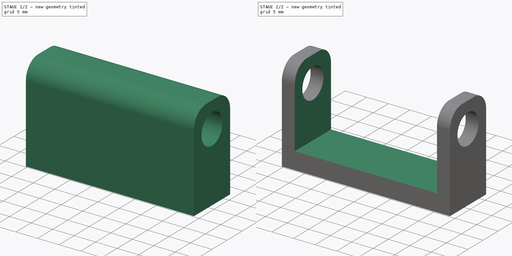
[diagram: build sequence overview — one tinted view per stage of 2, left to right]
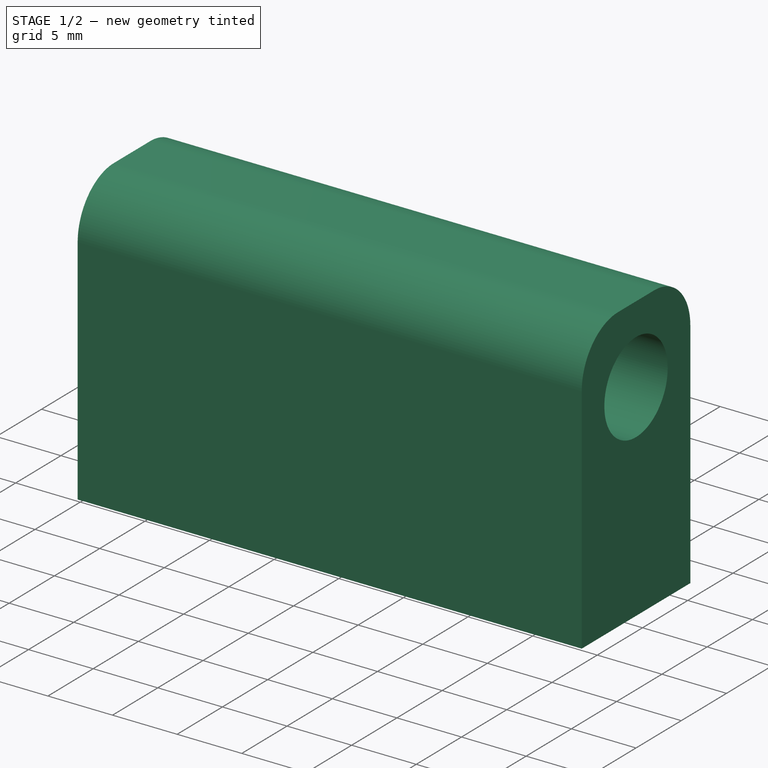
[diagram: stage 1 of 2 — iso view after this stage's code; geometry added in this stage tinted green]
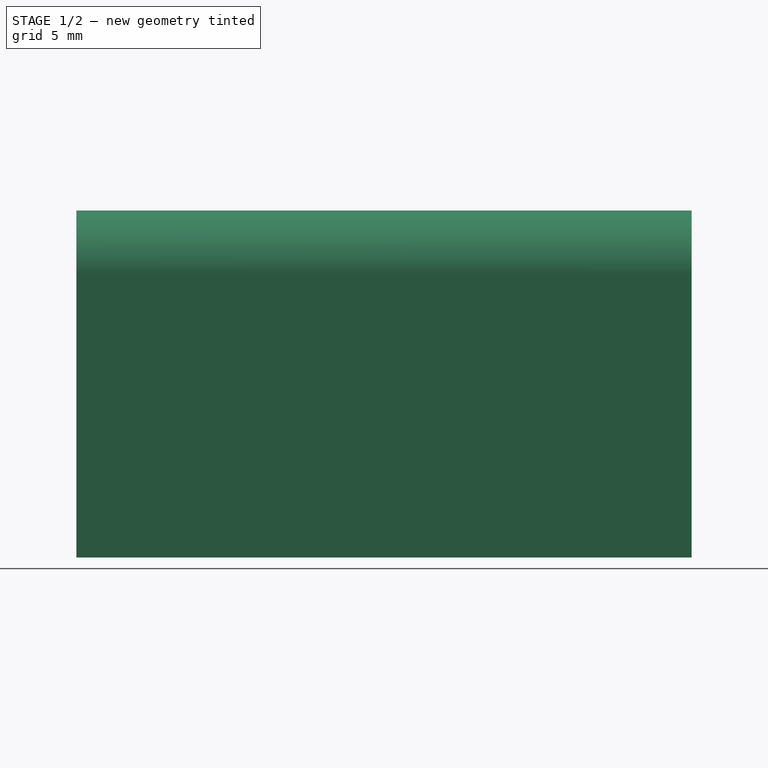
[diagram: stage 1 of 2 — front view after this stage's code; geometry added in this stage tinted green]
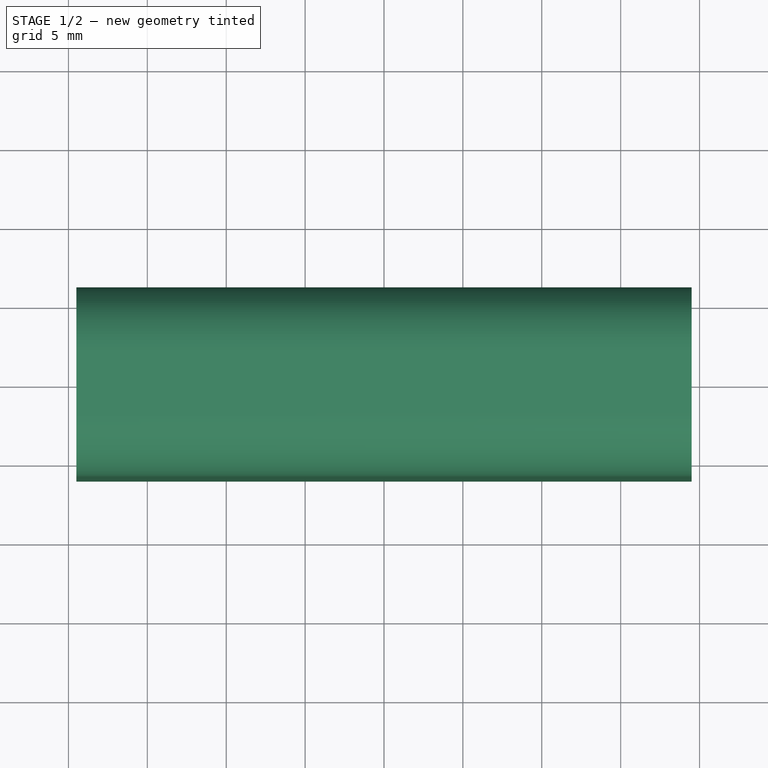
[diagram: stage 1 of 2 — top view after this stage's code; geometry added in this stage tinted green]
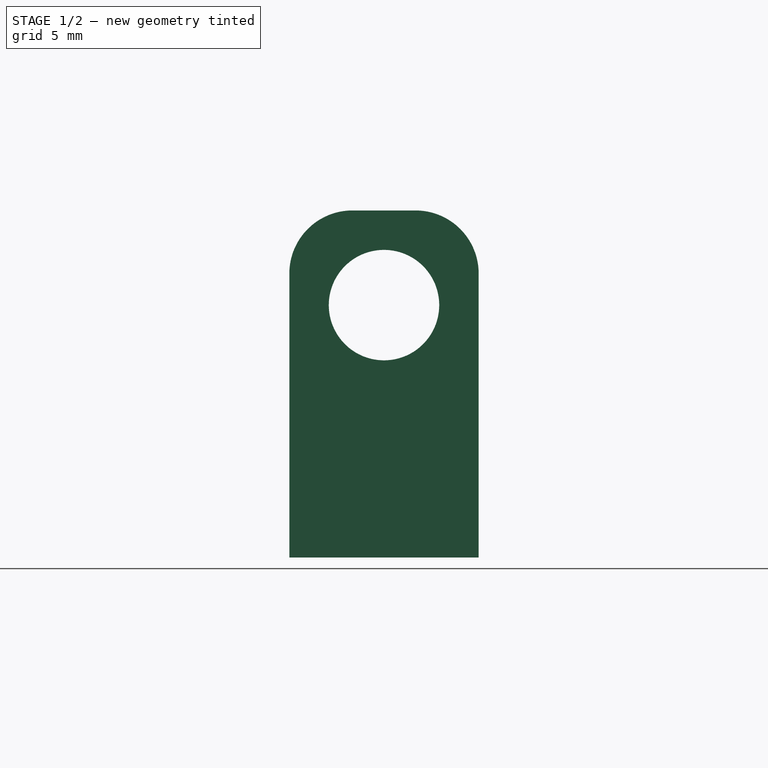
[diagram: stage 1 of 2 — right view after this stage's code; geometry added in this stage tinted green]
FCSTD DOCUMENT  (FreeCAD 0.21R33771 (Git))
Label: lamp_bracket
License: All rights reserved
LicenseURL: https://en.wikipedia.org/wiki/All_rights_reserved
objects: PartDesign::Plane×4, Sketcher::SketchObject×2, PartDesign::Pad×1, PartDesign::Pocket×1, PartDesign::Body×1
note: 11 computed .brp shape members not serialized (recipe doc carries the construction recipe); baked Part::Feature solids carry a one-line shape summary decoded from their .brp

FEATURE [PartDesign::Plane] DatumPlane
  AttachmentOffset = pos=(0,0,16.5) rot=(0,0,1;0rad)
  Length = 60
  MapMode = 5
  Placement = pos=(16.5,-3.7e-15,3.7e-15) rot=(0.57735,0.57735,0.57735;2.0944rad)
  ResizeMode = 0
  Support = -> [YZ_Plane]
  Width = 60
  expr: .AttachmentOffset.Base.z = 33 mm / 2
FEATURE [PartDesign::Plane] DatumPlane001
  AttachmentOffset = pos=(0,0,-16.5) rot=(0,0,1;0rad)
  Length = 60
  MapMode = 5
  Placement = pos=(-16.5,3.7e-15,-3.7e-15) rot=(0.57735,0.57735,0.57735;2.0944rad)
  ResizeMode = 0
  Support = -> [YZ_Plane]
  Width = 60
  expr: .AttachmentOffset.Base.z = -33 mm / 2
FEATURE [PartDesign::Plane] DatumPlane002
  AttachmentOffset = pos=(0,0,3) rot=(0,0,1;0rad)
  Length = 60
  MapMode = 5
  Placement = pos=(19.5,-4e-15,4e-15) rot=(0.57735,0.57735,0.57735;2.0944rad)
  ResizeMode = 0
  Support = -> [DatumPlane]
  Width = 60
FEATURE [Sketcher::SketchObject] Sketch
  FullyConstrained = true
  MapMode = 5
  Placement = pos=(19.5,-4e-15,4e-15) rot=(0.57735,0.57735,0.57735;2.0944rad)
  Support = -> [DatumPlane002]
  expr: .Constraints.dim1 = .Constraints.diam + 5 mm
  expr: Constraints[11] = .Constraints.dim1 / 2
  sketch-geometry (15):
    g0: LineSegment StartX=-6 StartY=22 StartZ=0 EndX=6 EndY=22 EndZ=0
    g1: LineSegment StartX=6 StartY=22 StartZ=0 EndX=6 EndY=4 EndZ=0
    g2: LineSegment StartX=6 StartY=4 StartZ=0 EndX=-6 EndY=4 EndZ=0
    g3: LineSegment StartX=-6 StartY=4 StartZ=0 EndX=-6 EndY=22 EndZ=0
    g4: Circle CenterX=0 CenterY=16 CenterZ=0 NormalX=0 NormalY=0 NormalZ=1 AngleXU=0 Radius=3.5
    g5: LineSegment StartX=-6 StartY=4 StartZ=0 EndX=6 EndY=4 EndZ=0
    g6: LineSegment StartX=6 StartY=4 StartZ=0 EndX=6 EndY=0 EndZ=0
    g7: LineSegment StartX=6 StartY=0 StartZ=0 EndX=-6 EndY=0 EndZ=0
    g8: LineSegment StartX=-6 StartY=0 StartZ=0 EndX=-6 EndY=4 EndZ=0
    g9: LineSegment StartX=-2 StartY=22 StartZ=0 EndX=2 EndY=22 EndZ=0
    g10: LineSegment StartX=-6 StartY=18 StartZ=0 EndX=-6 EndY=0 EndZ=0
    g11: LineSegment StartX=-6 StartY=0 StartZ=0 EndX=6 EndY=0 EndZ=0
    g12: LineSegment StartX=6 StartY=18 StartZ=0 EndX=6 EndY=0 EndZ=0
    g13: ArcOfCircle CenterX=-2 CenterY=18 CenterZ=0 NormalX=0 NormalY=0 NormalZ=1 AngleXU=0 Radius=4 StartAngle=1.5708 EndAngle=3.14159
    g14: ArcOfCircle CenterX=2 CenterY=18 CenterZ=0 NormalX=0 NormalY=0 NormalZ=1 AngleXU=0 Radius=4 StartAngle=0 EndAngle=1.5708
  constraints (42):
    c: Coincident(g0,g1)
    c: Coincident(g1,g2)
    c: Coincident(g2,g3)
    c: Coincident(g3,g0)
    c: Horizontal(g2)
    c: Vertical(g1)
    c: Vertical(g3)
    c: PointOnObject(g4,g-2)
    c: Symmetric(g0,g0,g-2)
    c: Diameter(g4) = 7  'diam'
    c: DistanceX(g0,g0) = 12  'dim1'
    c: DistanceY(g4,g0) = 6
    c: Coincident(g5,g6)
    c: Coincident(g6,g7)
    c: Coincident(g7,g8)
    c: Coincident(g8,g5)
    c: Horizontal(g7)
    c: Vertical(g6)
    c: Vertical(g8)
    c: Coincident(g5,g2)
    c: PointOnObject(g6,g-1)
    c: Coincident(g5,g1)
    c: DistanceY(g8,g8) = 4  'base_height'
    c: DistanceY(g1,g1) = 18  'lobe_height'
    c: PointOnObject(g9,g0)
    c: PointOnObject(g9,g0)
    c: PointOnObject(g10,g3)
    c: Coincident(g10,g7)
    c: Coincident(g11,g10)
    c: Coincident(g11,g6)
    c: PointOnObject(g12,g1)
    c: Coincident(g12,g11)
    c: Coincident(g13,g10)
    c: Coincident(g13,g9)
    c: Vertical(g13,g9)
    c: Horizontal(g13,g10)
    c: Coincident(g14,g9)
    c: Coincident(g14,g12)
    c: Vertical(g14,g9)
    c: Horizontal(g14,g12)
    c: Equal(g14,g13)
    c: Radius(g14) = 4
FEATURE [PartDesign::Plane] DatumPlane003
  AttachmentOffset = pos=(0,0,-3) rot=(0,0,1;0rad)
  Length = 60
  MapMode = 5
  Placement = pos=(-19.5,4e-15,-4e-15) rot=(0.57735,0.57735,0.57735;2.0944rad)
  ResizeMode = 0
  Support = -> [DatumPlane001]
  Width = 60
FEATURE [PartDesign::Pad] Pad
  Direction = (1,0,0)
  Length = 10
  Length2 = 10
  Placement = pos=(19.5,-4e-15,4e-15) rot=(0.57735,0.57735,0.57735;2.0944rad)
  Profile = -> Sketch
  ReferenceAxis = -> Sketch [N_Axis]
  Type = 3
  UpToFace = -> DatumPlane003
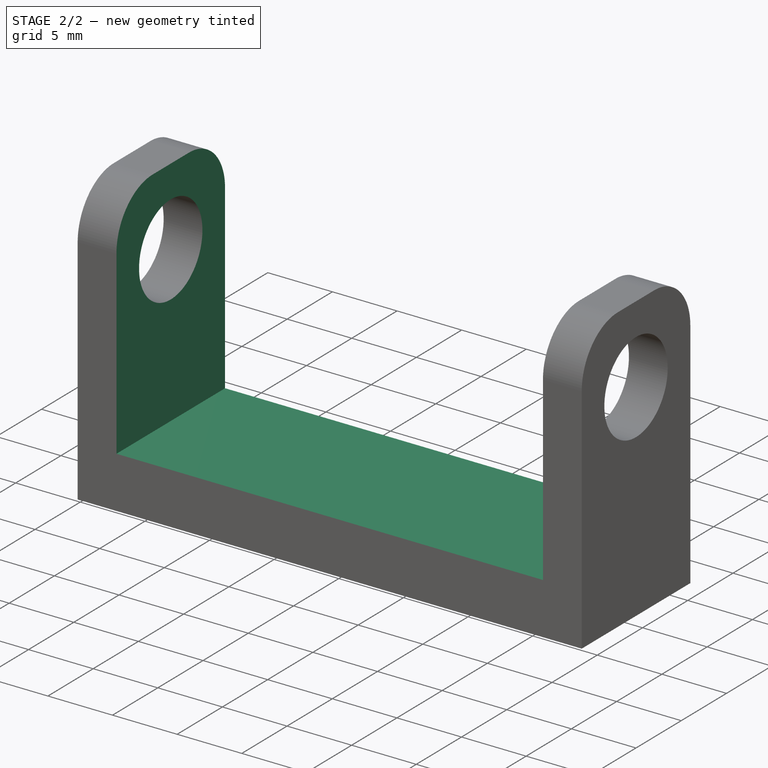
[diagram: stage 2 of 2 — iso view after this stage's code; geometry added in this stage tinted green]
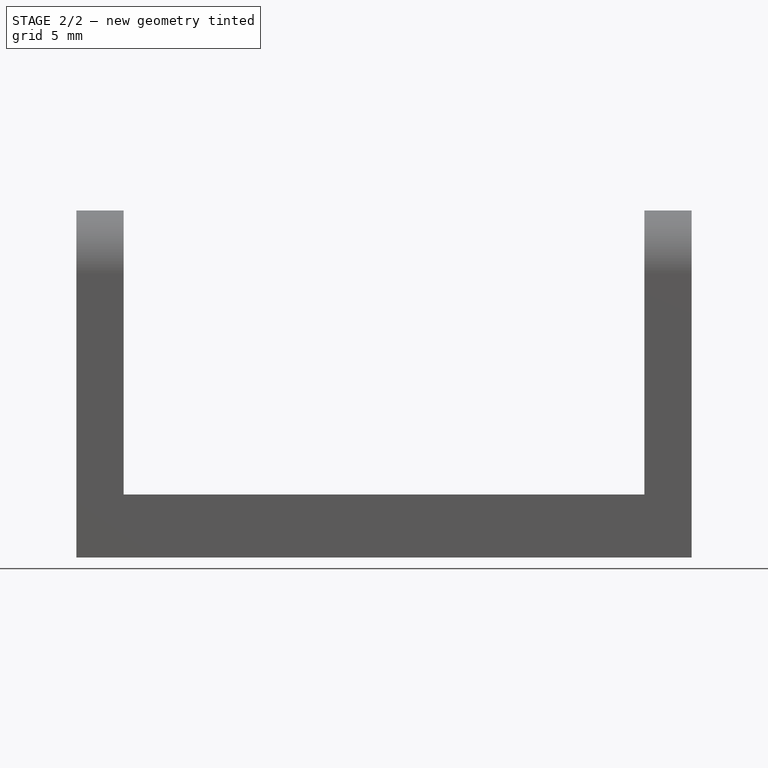
[diagram: stage 2 of 2 — front view after this stage's code; geometry added in this stage tinted green]
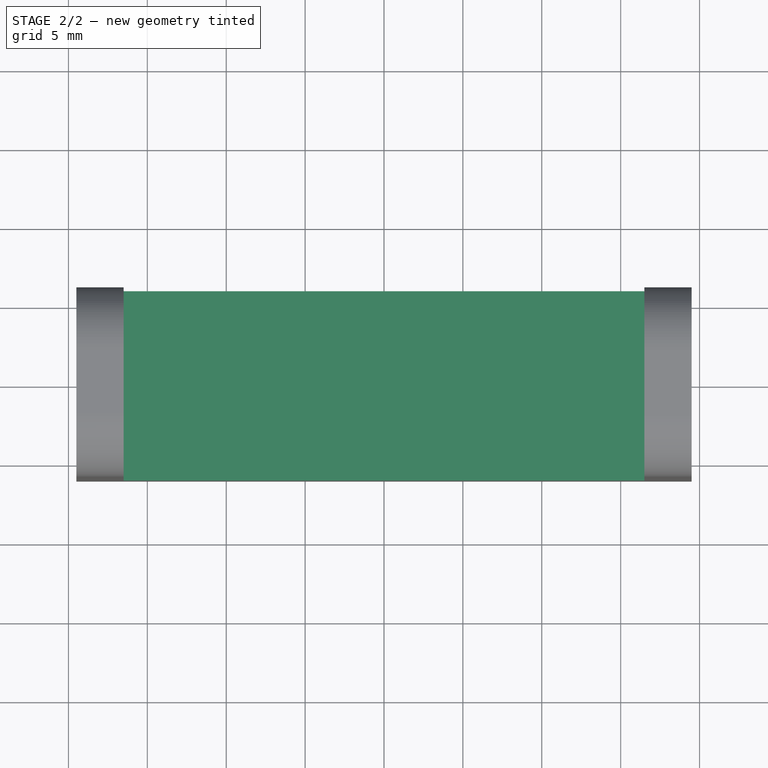
[diagram: stage 2 of 2 — top view after this stage's code; geometry added in this stage tinted green]
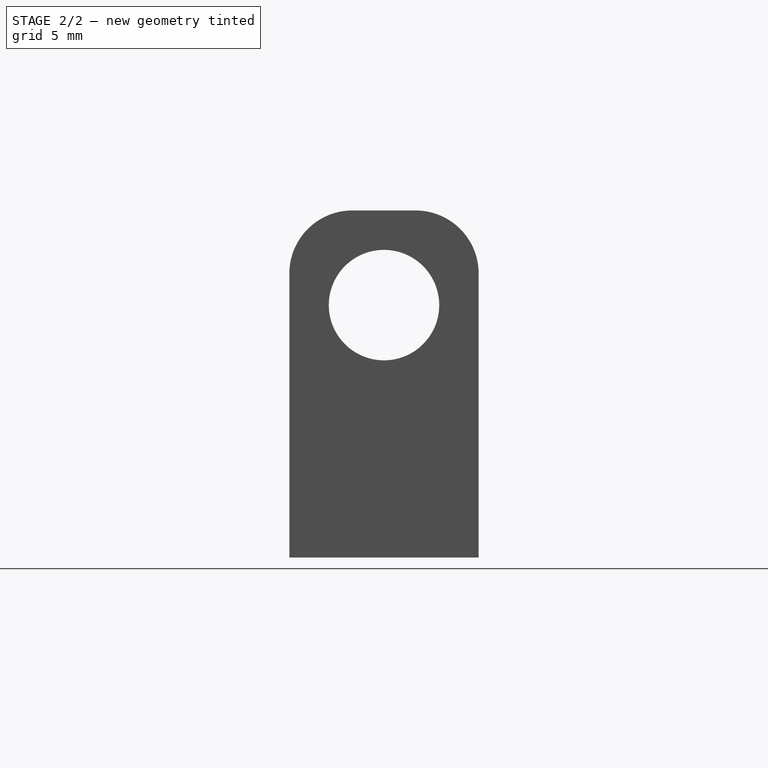
[diagram: stage 2 of 2 — right view after this stage's code; geometry added in this stage tinted green]
FEATURE [Sketcher::SketchObject] Sketch001
  FullyConstrained = true
  MapMode = 5
  Placement = pos=(16.5,-3.7e-15,3.7e-15) rot=(0.57735,0.57735,0.57735;2.0944rad)
  Support = -> [DatumPlane]
  expr: Constraints[10] = Sketch.Constraints.base_height
  expr: Constraints[11] = Sketch.Constraints.lobe_height
  expr: Constraints[12] = Sketch.Constraints.dim1
  sketch-geometry (5):
    g0: LineSegment StartX=-6 StartY=22 StartZ=0 EndX=-6 EndY=4 EndZ=0
    g1: LineSegment StartX=-6 StartY=4 StartZ=0 EndX=6 EndY=4 EndZ=0
    g2: LineSegment StartX=6 StartY=4 StartZ=0 EndX=6 EndY=22 EndZ=0
    g3: LineSegment StartX=6 StartY=22 StartZ=0 EndX=-6 EndY=22 EndZ=0
    g4: GeomPoint X=0 Y=13 Z=0
  constraints (13):
    c: Coincident(g0,g1)
    c: Coincident(g1,g2)
    c: Coincident(g2,g3)
    c: Coincident(g3,g0)
    c: Horizontal(g1)
    c: Horizontal(g3)
    c: Vertical(g0)
    c: Vertical(g2)
    c: Symmetric(g1,g0,g4)
    c: PointOnObject(g4,g-2)
    c: DistanceY(g-1,g1) = 4
    c: DistanceY(g2,g2) = 18
    c: DistanceX(g3,g3) = 12
FEATURE [PartDesign::Pocket] Pocket
  BaseFeature = -> Pad
  Direction = (-1,1e-16,-1e-16)
  Length = 0
  Length2 = 5
  Placement = pos=(19.5,-4e-15,4e-15) rot=(0.57735,0.57735,0.57735;2.0944rad)
  Profile = -> Sketch001
  ReferenceAxis = -> Sketch001 [N_Axis]
  Type = 3
  UpToFace = -> DatumPlane001
FEATURE [PartDesign::Body] Body
  Group = -> [Sketch,DatumPlane,DatumPlane001,Pad,DatumPlane002,DatumPlane003,Sketch001,Pocket]
  Origin = -> Origin
  Tip = -> Pocket
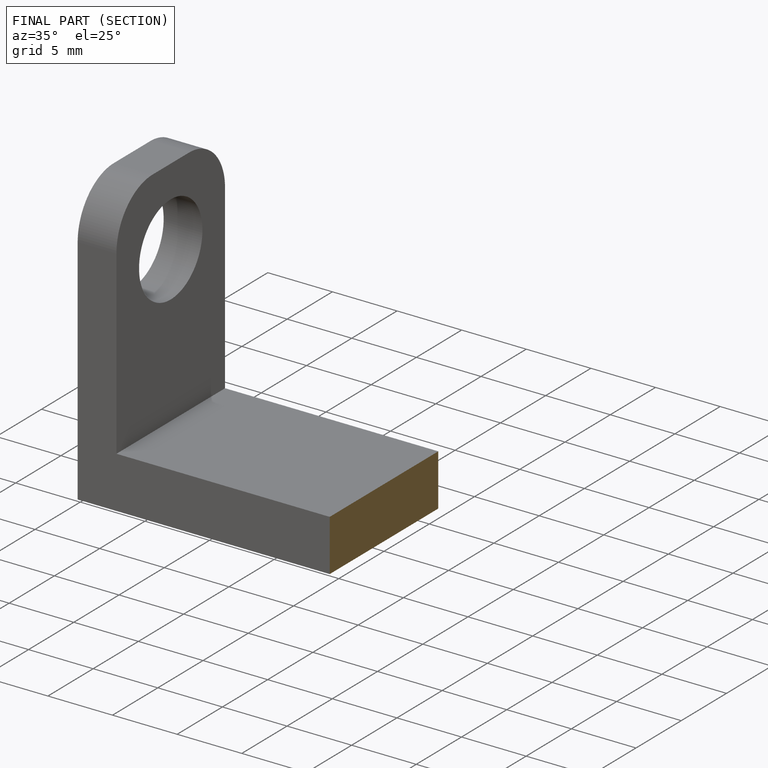
[diagram: finished part — half-section view (interior)]
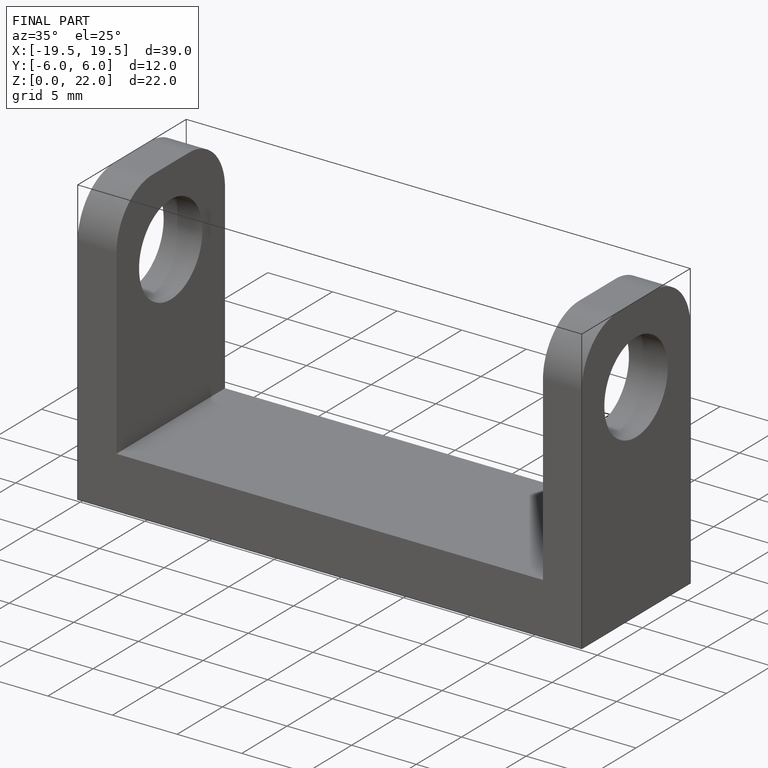
[diagram: finished part — iso view with bounding-box wireframe]
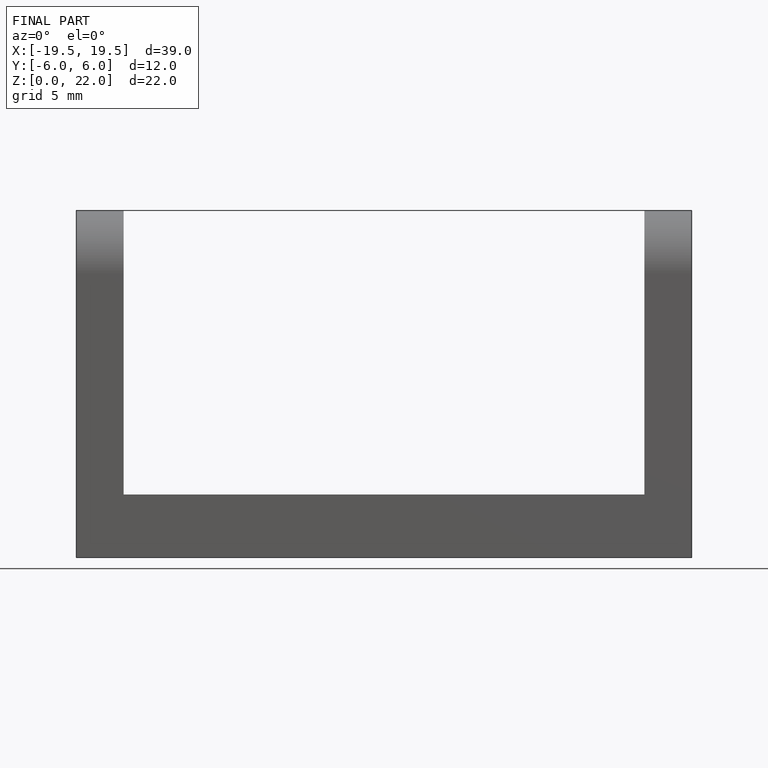
[diagram: finished part — front view with bounding-box wireframe]
